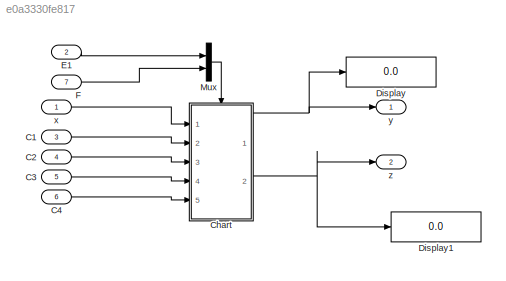
MODEL slx_e0a3330fe817
KIND model
CONFIG AbsTol = auto
CONFIG EnableMultiTasking = on
CONFIG FixedStep = 0.200000
CONFIG MaxStep = auto
CONFIG MinStep = auto
CONFIG RelTol = 1e-3
CONFIG SampleTimeConstraint = Unconstrained
CONFIG Solver = FixedStepDiscrete
CONFIG SolverName = FixedStepDiscrete
CONFIG StartTime = 0.0
CONFIG StopTime = 10.0
WORKSPACE source: MAT-file member
WORKSPACE already_pp = 1
BLOCK [Inport] C1
  IconDisplay = Port number
  Port = 3
BLOCK [Inport] C2
  IconDisplay = Port number
  Port = 4
BLOCK [Inport] C3
  IconDisplay = Port number
  Port = 5
BLOCK [Inport] C4
  IconDisplay = Port number
  Port = 6
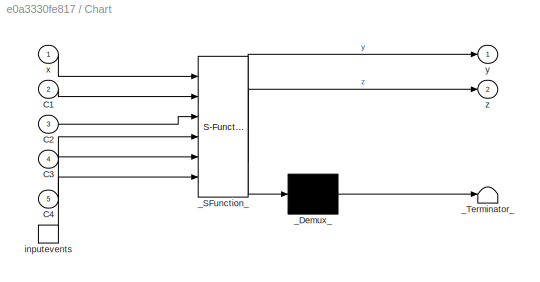
BLOCK [SubSystem] Chart
  ErrorFcn = Stateflow.Translate.translate
  PermitHierarchicalResolution = ExplicitOnly
  Ports = [5, 2, 0, 1]
  RequestExecContextInheritance = off
  SFBlockType = Chart
  TreatAsAtomicUnit = on
  Variant = off
BLOCK [Inport] Chart/C1
  IconDisplay = Port number
  Port = 2
BLOCK [Inport] Chart/C2
  IconDisplay = Port number
  Port = 3
BLOCK [Inport] Chart/C3
  IconDisplay = Port number
  Port = 4
BLOCK [Inport] Chart/C4
  IconDisplay = Port number
  Port = 5
BLOCK [Demux] Chart/_Demux_
  Outputs = 1
  Ports = [1, 1]
BLOCK [S-Function] Chart/_SFunction_
  EnableBusSupport = on
  FunctionName = sf_sfun
  Parameters = x3,x4
  PortCounts = [6 3]
  Ports = [6, 3]
  SFcnIsStateOwnerBlock = off
  SFunctionDeploymentMode = off
  Tag = Stateflow S-Function Junctions2_PP 1
BLOCK [Terminator] Chart/_Terminator_
BLOCK [TriggerPort] Chart/inputevents
  Ports = [0, 1]
  ShowOutputPort = on
  TriggerType = either
  VariantControl = (inherit)
BLOCK [Inport] Chart/x
  IconDisplay = Port number
BLOCK [Outport] Chart/y
  IconDisplay = Port number
BLOCK [Outport] Chart/z
  IconDisplay = Port number
  Port = 2
BLOCK [Display] Display
  Decimation = 1
  Ports = [1]
BLOCK [Display] Display1
  Decimation = 1
  Ports = [1]
BLOCK [Inport] E1
  IconDisplay = Port number
  Port = 2
BLOCK [Inport] F
  IconDisplay = Port number
  Port = 7
BLOCK [Mux] Mux
  DisplayOption = bar
  Inputs = 2
  Ports = [2, 1]
BLOCK [Inport] x
  IconDisplay = Port number
BLOCK [Outport] y
  IconDisplay = Port number
BLOCK [Outport] z
  IconDisplay = Port number
  Port = 2
LINE C1:1 -> Chart:2
LINE C2:1 -> Chart:3
LINE C3:1 -> Chart:4
LINE C4:1 -> Chart:5
NET Chart:1 -> Display:1, y:1
NET Chart:2 -> Display1:1, z:1
LINE E1:1 -> Mux:1
LINE F:1 -> Mux:2
LINE Mux:1 -> Chart:trigger
LINE x:1 -> Chart:1
note: NET lines group one-source signal fan-out (src -> all destinations, sorted); 1:1 wires keep LINE
CHART Chart states=4 transitions=6
  STATE_LABEL 'A\nen: y = 0;\n x1 = 0;\n z = 0;\nex : y=2.*x3+x4'
  STATE_LABEL 'B\ndu : x1 = x1 - 1;'
  STATE_LABEL 'C\ndu : x1 = x1 + 1;'
  STATE_LABEL 'D\ndu : x1 = x1 + 1;'
